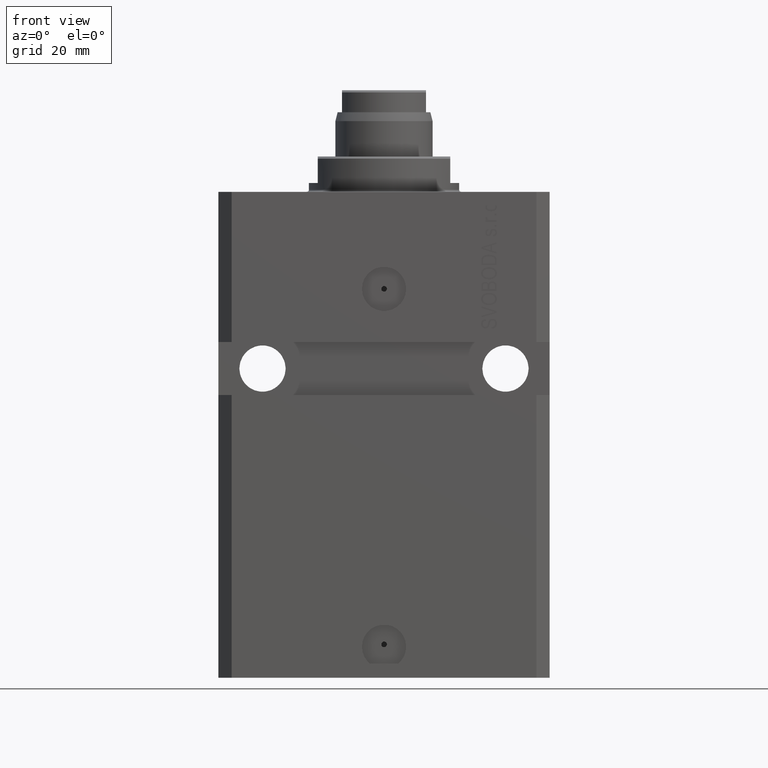
[diagram: clean part render]
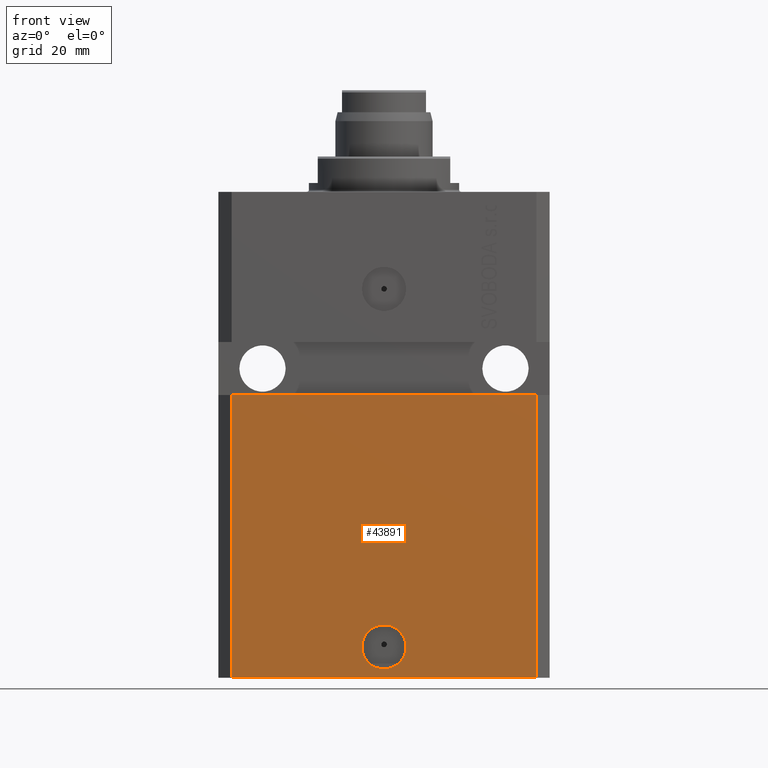
[diagram: same view with one face highlighted and labeled with its STEP entity id]
A machine part, front view. The second image highlights one B-rep face of the part: STEP entity #43891.
In plain terms, the highlighted planar face has unit normal (0, -1, 0).
Its self-contained STEP definition (entity closure, byte-faithful):
#63 = EDGE_CURVE ( 'NONE', #33750, #11626, #22451, .T. ) ;
#946 = CARTESIAN_POINT ( 'NONE',  ( 5.000000000000006217, -27.49999999999999645, -103.0000000000000000 ) ) ;
#1427 = AXIS2_PLACEMENT_3D ( 'NONE', #22125, #11853, #39923 ) ;
#1565 = ORIENTED_EDGE ( 'NONE', *, *, #23369, .F. ) ;
#2095 = EDGE_LOOP ( 'NONE', ( #13873, #19781, #37744, #27348 ) ) ;
#2776 = CARTESIAN_POINT ( 'NONE',  ( -34.49999999999998579, -27.49999999999999645, -110.0000000000000000 ) ) ;
#7920 = CARTESIAN_POINT ( 'NONE',  ( -5.000000000000006217, -27.49999999999999645, -103.0000000000000000 ) ) ;
#8678 = VECTOR ( 'NONE', #37874, 1000.000000000000000 ) ;
#8786 = EDGE_CURVE ( 'NONE', #46213, #16563, #45944, .T. ) ;
#9382 = EDGE_CURVE ( 'NONE', #33750, #46213, #16561, .T. ) ;
#10365 = VERTEX_POINT ( 'NONE', #7920 ) ;
#11249 = DIRECTION ( 'NONE',  ( 0.000000000000000000, 0.000000000000000000, 1.000000000000000000 ) ) ;
#11626 = VERTEX_POINT ( 'NONE', #21773 ) ;
#11853 = DIRECTION ( 'NONE',  ( 0.000000000000000000, -1.000000000000000000, 0.000000000000000000 ) ) ;
#13186 = VECTOR ( 'NONE', #17143, 1000.000000000000000 ) ;
#13873 = ORIENTED_EDGE ( 'NONE', *, *, #29198, .F. ) ;
#14617 = CARTESIAN_POINT ( 'NONE',  ( 0.000000000000000000, -27.49999999999999645, -103.0000000000000000 ) ) ;
#15336 = PLANE ( 'NONE',  #1427 ) ;
#16561 = LINE ( 'NONE', #2776, #8678 ) ;
#16563 = VERTEX_POINT ( 'NONE', #42560 ) ;
#17143 = DIRECTION ( 'NONE',  ( 0.000000000000000000, 0.000000000000000000, 1.000000000000000000 ) ) ;
#19064 = AXIS2_PLACEMENT_3D ( 'NONE', #14617, #35228, #38968 ) ;
#19781 = ORIENTED_EDGE ( 'NONE', *, *, #63, .F. ) ;
#21111 = CARTESIAN_POINT ( 'NONE',  ( 34.49999999999999289, -27.49999999999999645, -110.0000000000000000 ) ) ;
#21745 = CARTESIAN_POINT ( 'NONE',  ( -34.49999999999998579, -27.49999999999999645, -110.0000000000000000 ) ) ;
#21773 = CARTESIAN_POINT ( 'NONE',  ( -34.49999999999998579, -27.50000000000000000, -46.00000000000000000 ) ) ;
#22125 = CARTESIAN_POINT ( 'NONE',  ( -34.49999999999998579, -27.49999999999999645, -110.0000000000000000 ) ) ;
#22451 = LINE ( 'NONE', #21745, #36124 ) ;
#22514 = CARTESIAN_POINT ( 'NONE',  ( 0.000000000000000000, -27.49999999999999645, -103.0000000000000000 ) ) ;
#22737 = DIRECTION ( 'NONE',  ( 1.000000000000000000, 0.000000000000000000, 0.000000000000000000 ) ) ;
#23369 = EDGE_CURVE ( 'NONE', #39484, #10365, #33042, .T. ) ;
#27317 = DIRECTION ( 'NONE',  ( 1.000000000000000000, 9.251858538542972814E-17, -9.251858538542972814E-17 ) ) ;
#27348 = ORIENTED_EDGE ( 'NONE', *, *, #8786, .T. ) ;
#29198 = EDGE_CURVE ( 'NONE', #11626, #16563, #37844, .T. ) ;
#31067 = CARTESIAN_POINT ( 'NONE',  ( -37.50000000000000000, -27.50000000000000000, -46.00000000000000000 ) ) ;
#31527 = AXIS2_PLACEMENT_3D ( 'NONE', #22514, #43367, #22737 ) ;
#33042 = CIRCLE ( 'NONE', #31527, 5.000000000000006217 ) ;
#33750 = VERTEX_POINT ( 'NONE', #35008 ) ;
#34050 = CIRCLE ( 'NONE', #19064, 5.000000000000006217 ) ;
#34652 = VECTOR ( 'NONE', #27317, 1000.000000000000000 ) ;
#35008 = CARTESIAN_POINT ( 'NONE',  ( -34.49999999999998579, -27.49999999999999645, -110.0000000000000000 ) ) ;
#35228 = DIRECTION ( 'NONE',  ( 1.176083712526788232E-16, -1.000000000000000000, 0.000000000000000000 ) ) ;
#36124 = VECTOR ( 'NONE', #11249, 1000.000000000000000 ) ;
#36648 = FACE_OUTER_BOUND ( 'NONE', #2095, .T. ) ;
#36718 = EDGE_CURVE ( 'NONE', #10365, #39484, #34050, .T. ) ;
#36833 = CARTESIAN_POINT ( 'NONE',  ( 34.49999999999999289, -27.49999999999999645, -110.0000000000000000 ) ) ;
#37744 = ORIENTED_EDGE ( 'NONE', *, *, #9382, .T. ) ;
#37844 = LINE ( 'NONE', #31067, #34652 ) ;
#37874 = DIRECTION ( 'NONE',  ( 1.000000000000000000, 0.000000000000000000, 0.000000000000000000 ) ) ;
#38968 = DIRECTION ( 'NONE',  ( 1.000000000000000000, 0.000000000000000000, 0.000000000000000000 ) ) ;
#39484 = VERTEX_POINT ( 'NONE', #946 ) ;
#39688 = FACE_BOUND ( 'NONE', #42006, .T. ) ;
#39923 = DIRECTION ( 'NONE',  ( 0.000000000000000000, -0.000000000000000000, -1.000000000000000000 ) ) ;
#42006 = EDGE_LOOP ( 'NONE', ( #1565, #43042 ) ) ;
#42560 = CARTESIAN_POINT ( 'NONE',  ( 34.49999999999999289, -27.49999999999999289, -46.00000000000000711 ) ) ;
#43042 = ORIENTED_EDGE ( 'NONE', *, *, #36718, .F. ) ;
#43367 = DIRECTION ( 'NONE',  ( 1.176083712526788232E-16, -1.000000000000000000, 0.000000000000000000 ) ) ;
#43891 = ADVANCED_FACE ( 'NONE', ( #39688, #36648 ), #15336, .T. ) ;
#45944 = LINE ( 'NONE', #21111, #13186 ) ;
#46213 = VERTEX_POINT ( 'NONE', #36833 ) ;